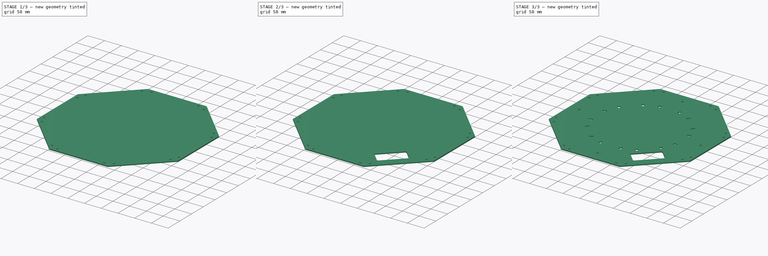
[diagram: build sequence overview — one tinted view per stage of 3, left to right]
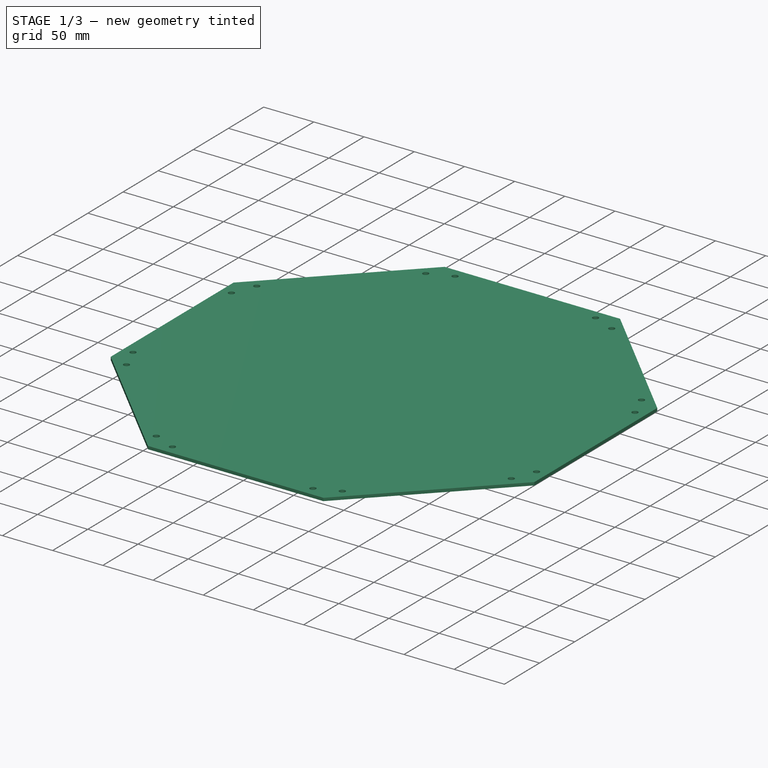
[diagram: stage 1 of 3 — iso view after this stage's code; geometry added in this stage tinted green]
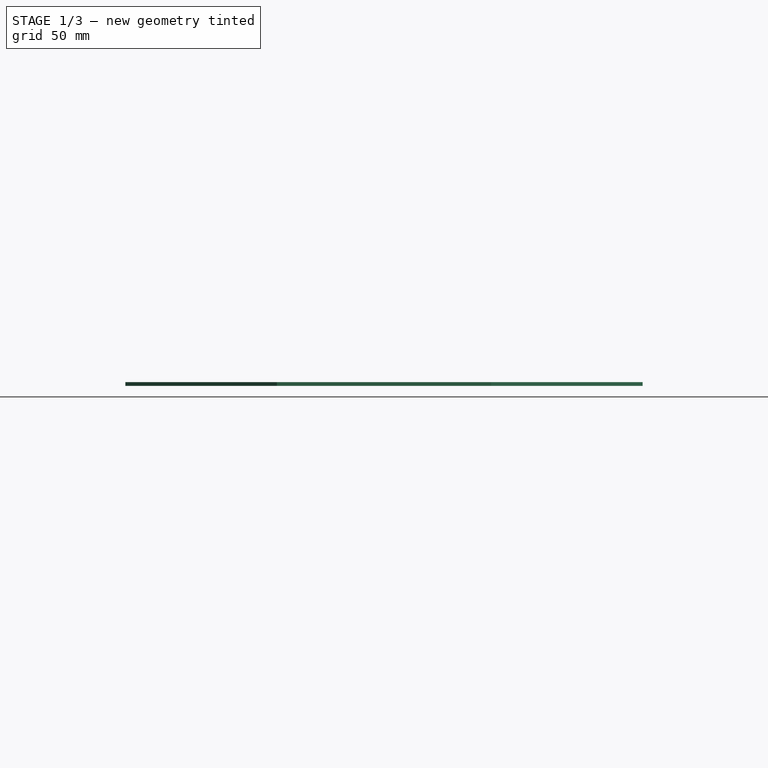
[diagram: stage 1 of 3 — front view after this stage's code; geometry added in this stage tinted green]
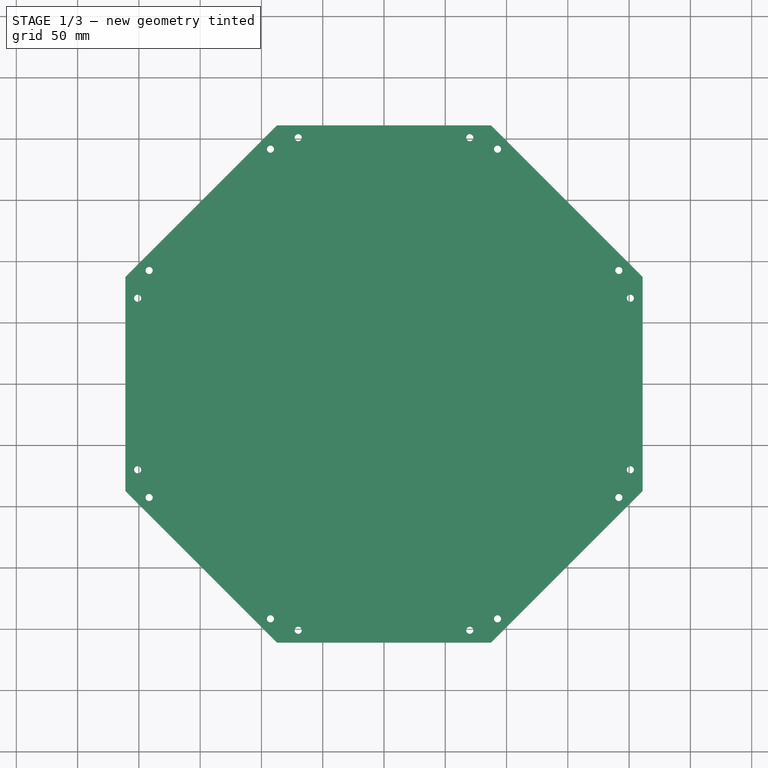
[diagram: stage 1 of 3 — top view after this stage's code; geometry added in this stage tinted green]
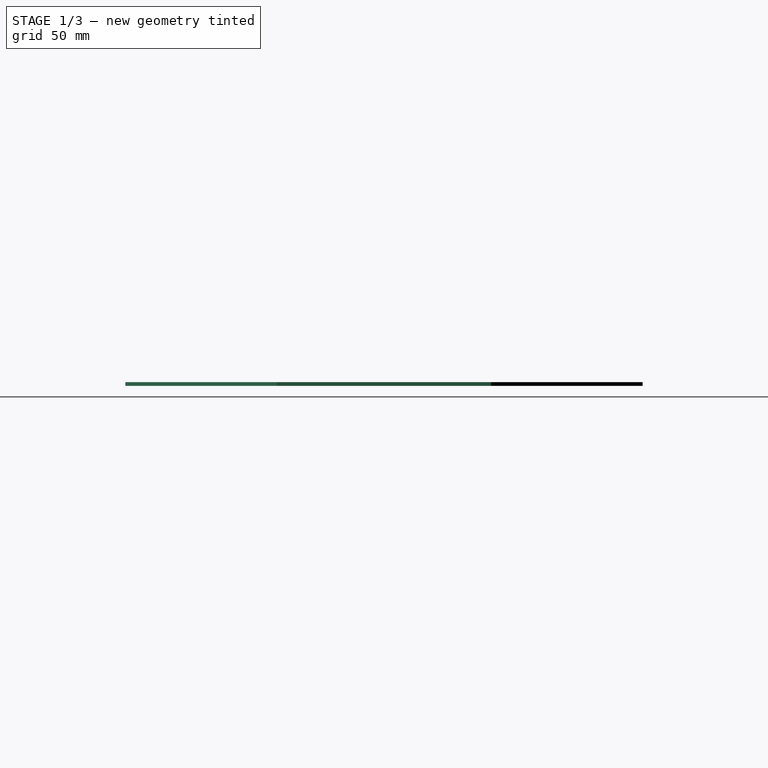
[diagram: stage 1 of 3 — right view after this stage's code; geometry added in this stage tinted green]
FCSTD DOCUMENT  (FreeCAD 1.0R39319 (Git))
Label: OCT-FRPLC-AA
License: All rights reserved
LicenseURL: https://en.wikipedia.org/wiki/All_rights_reserved
objects: Sketcher::SketchObject×5, PartDesign::Hole×2, PartDesign::PolarPattern×2, PartDesign::Pocket×2, App::Link×1, PartDesign::Pad×1, PartDesign::Fillet×1, PartDesign::Body×1
note: 33 computed .brp shape members not serialized (recipe doc carries the construction recipe); baked Part::Feature solids carry a one-line shape summary decoded from their .brp
EXTERNAL_REF file=../../master.FCStd obj=Spreadsheet

FEATURE [App::Link] Link  label="dims"
  LinkedObject = -> <external ../../master.FCStd>#Spreadsheet
FEATURE [Sketcher::SketchObject] Sketch
  ArcFitTolerance = 1e-06
  AttachmentSupport = -> [XY_Plane]
  FullyConstrained = true
  MakeInternals = false
  MapMode = 5
  expr: Constraints[25] = <<dims>>.iwFurnace
  sketch-geometry (9):
    g0: LineSegment StartX=87.3991 StartY=211 StartZ=0 EndX=-87.3991 EndY=211 EndZ=0
    g1: LineSegment StartX=-87.3991 StartY=211 StartZ=0 EndX=-211 EndY=87.3991 EndZ=0
    g2: LineSegment StartX=-211 StartY=87.3991 StartZ=0 EndX=-211 EndY=-87.3991 EndZ=0
    g3: LineSegment StartX=-211 StartY=-87.3991 StartZ=0 EndX=-87.3991 EndY=-211 EndZ=0
    g4: LineSegment StartX=-87.3991 StartY=-211 StartZ=0 EndX=87.3991 EndY=-211 EndZ=0
    g5: LineSegment StartX=87.3991 StartY=-211 StartZ=0 EndX=211 EndY=-87.3991 EndZ=0
    g6: LineSegment StartX=211 StartY=-87.3991 StartZ=0 EndX=211 EndY=87.3991 EndZ=0
    g7: LineSegment StartX=211 StartY=87.3991 StartZ=0 EndX=87.3991 EndY=211 EndZ=0
    g8: Circle [constr] CenterX=0 CenterY=0 CenterZ=0 NormalX=0 NormalY=0 NormalZ=1 AngleXU=0 Radius=228.385
  constraints (20):
    c: Coincident(g0,g1)
    c: Coincident(g1,g2)
    c: Coincident(g2,g3)
    c: Coincident(g3,g4)
    c: Coincident(g4,g5)
    c: Coincident(g5,g6)
    c: Coincident(g6,g7)
    c: Coincident(g7,g0)
    c: Equal(g0, g1-g7) x7
    c: PointOnObject(g0,g8)
    c: PointOnObject(g1,g8)
    c: PointOnObject(g2,g8)
    c: PointOnObject(g3,g8)
    c: PointOnObject(g4,g8)
    c: PointOnObject(g5,g8)
    c: PointOnObject(g6,g8)
    c: PointOnObject(g7,g8)
    c: Coincident(g8,g-1)
    c: Horizontal(g0)
    c: DistanceY(g3,g0) = 422
FEATURE [PartDesign::Pad] Pad
  Direction = (0,0,1)
  Length = 3
  Length2 = 10
  Profile = -> Sketch
  ReferenceAxis = -> Sketch [N_Axis]
  Refine = true
  Reversed = true
  Suppressed = false
  Type = 0
  expr: Length = <<dims>>.tBase
FEATURE [Sketcher::SketchObject] Sketch001
  ArcFitTolerance = 1e-06
  AttachmentSupport = -> [XY_Plane]
  FullyConstrained = true
  MakeInternals = false
  MapMode = 5
  expr: Constraints[3] = (<<dims>>.iwFurnace - <<dims>>.wExt) / 2
  sketch-geometry (3):
    g0: Circle CenterX=70 CenterY=-201 CenterZ=0 NormalX=0 NormalY=0 NormalZ=1 AngleXU=0 Radius=2.5
    g1: Circle CenterX=-70 CenterY=-201 CenterZ=0 NormalX=0 NormalY=0 NormalZ=1 AngleXU=0 Radius=2.5
    g2: LineSegment [constr] StartX=-70 StartY=-201 StartZ=0 EndX=70 EndY=-201 EndZ=0
  constraints (7):
    c: Coincident(g2,g1)
    c: Coincident(g2,g0)
    c: DistanceX(g2,g2) = 140
    c: DistanceY(g0,g-1) = 201
    c: Symmetric(g1,g0,g-2)
    c: Equal(g0,g1)
    c: Diameter(g0) = 5
FEATURE [PartDesign::Hole] Hole  label="frame mount holes"
  BaseFeature = -> Pad
  CustomThreadClearance = 0
  Depth = 1205.55
  DepthType = 1
  Diameter = 5.8
  DrillForDepth = false
  DrillPoint = 1
  DrillPointAngle = 118
  HoleCutCountersinkAngle = 90
  HoleCutCustomValues = false
  HoleCutDepth = 0
  HoleCutDiameter = 6.1
  HoleCutType = 0
  ModelThread = false
  Profile = -> Sketch001
  Refine = true
  Suppressed = false
  Tapered = false
  TaperedAngle = 90
  ThreadClass = 0
  ThreadDepth = 1205.55
  ThreadDepthType = 0
  ThreadDirection = 0
  ThreadFit = 2
  ThreadSize = 13
  ThreadType = 1
  Threaded = false
  UseCustomThreadClearance = false
FEATURE [PartDesign::PolarPattern] PolarPattern  label="ring hole pattern"
  Angle = 360
  Axis = -> Sketch001 [N_Axis]
  BaseFeature = -> Hole
  Mode = 0
  Occurrences = 8
  Offset = 120
  Originals = -> [Hole]
  Refine = true
  Suppressed = false
  TransformMode = 0
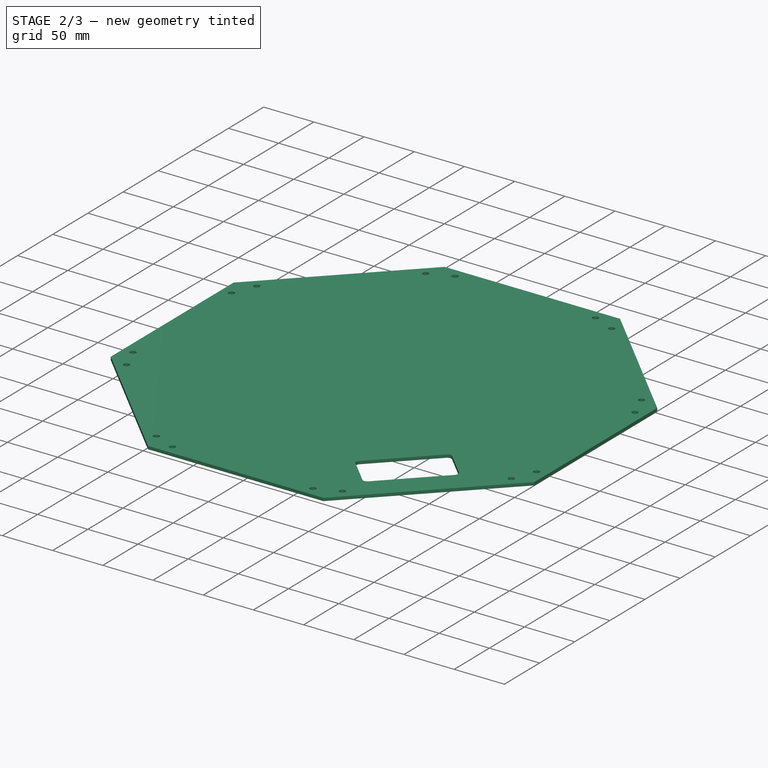
[diagram: stage 2 of 3 — iso view after this stage's code; geometry added in this stage tinted green]
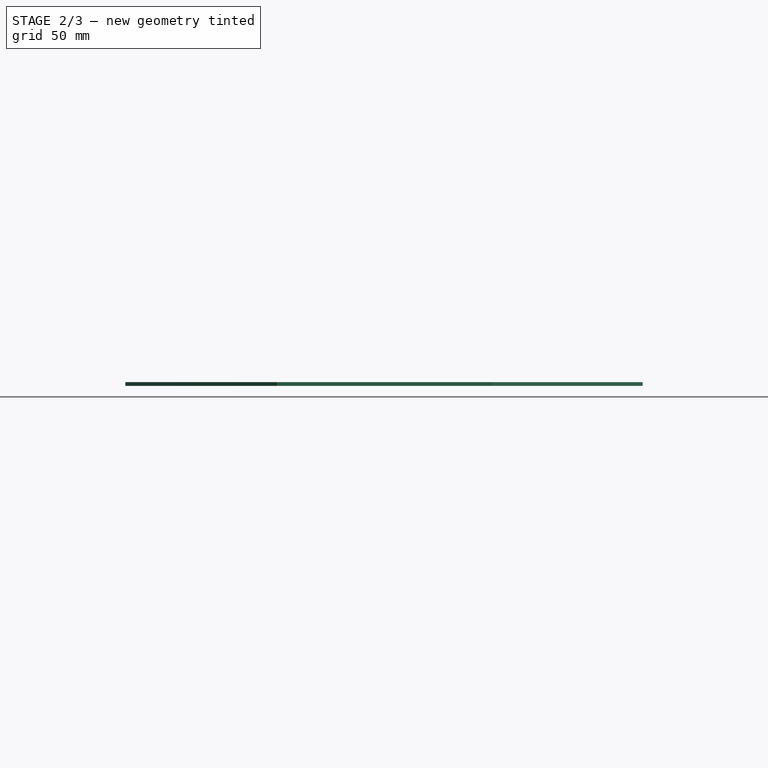
[diagram: stage 2 of 3 — front view after this stage's code; geometry added in this stage tinted green]
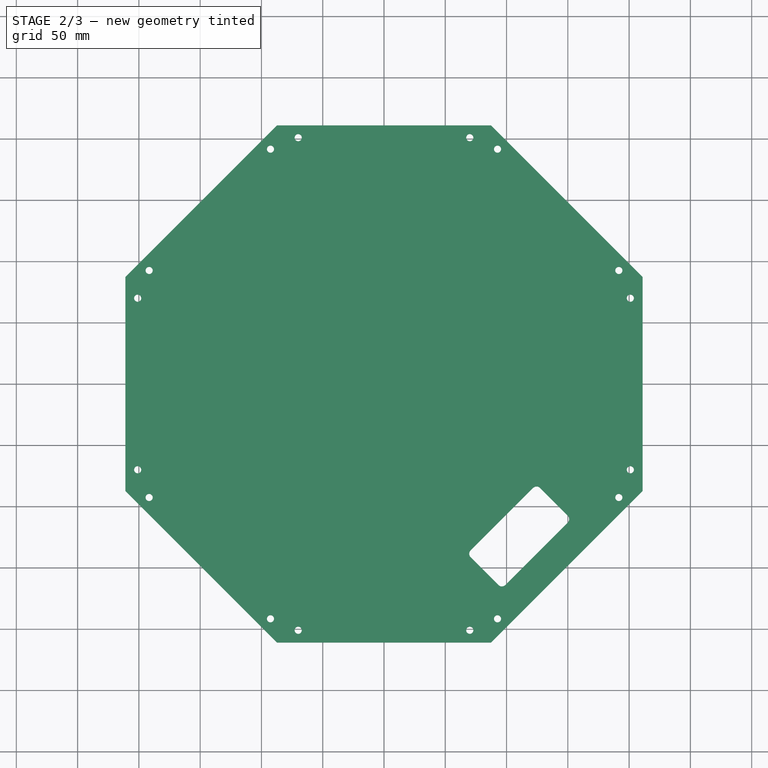
[diagram: stage 2 of 3 — top view after this stage's code; geometry added in this stage tinted green]
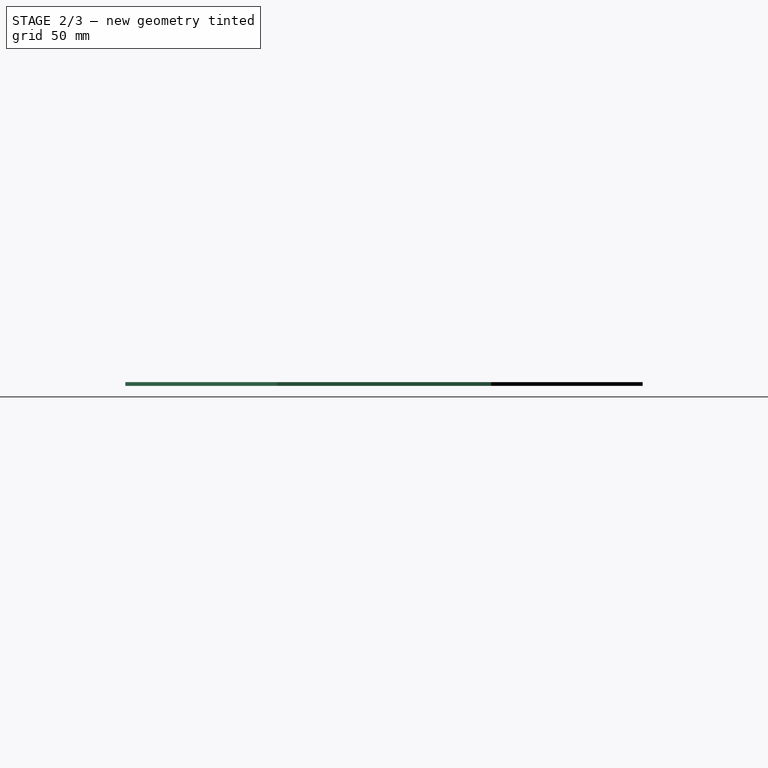
[diagram: stage 2 of 3 — right view after this stage's code; geometry added in this stage tinted green]
FEATURE [Sketcher::SketchObject] Sketch002
  ArcFitTolerance = 1e-06
  AttachmentSupport = -> [XY_Plane]
  FullyConstrained = false
  MakeInternals = false
  MapMode = 5
  expr: Constraints[18] = <<dims>>.iwFurnace / 2 - <<dims>>.wExt - 5
  sketch-geometry (8):
    g0: LineSegment StartX=96.1665 StartY=-166.877 StartZ=0 EndX=152.735 EndY=-110.309 EndZ=0
    g1: LineSegment StartX=152.735 StartY=-110.309 StartZ=0 EndX=124.451 EndY=-82.0244 EndZ=0
    g2: LineSegment StartX=124.451 StartY=-82.0244 StartZ=0 EndX=67.8823 EndY=-138.593 EndZ=0
    g3: LineSegment StartX=67.8823 StartY=-138.593 StartZ=0 EndX=96.1665 EndY=-166.877 EndZ=0
    g4: GeomPoint [constr] X=110.309 Y=-124.451 Z=0
    g5: LineSegment [constr] StartX=0 StartY=0 StartZ=0 EndX=203.219 EndY=-203.219 EndZ=0
    g6: LineSegment [constr] StartX=110.309 StartY=-124.451 StartZ=0 EndX=117.38 EndY=-117.38 EndZ=0
    g7: GeomPoint X=131.522 Y=-131.522 Z=0
  constraints (20):
    c: Coincident(g0,g1)
    c: Coincident(g1,g2)
    c: Coincident(g2,g3)
    c: Coincident(g3,g0)
    c: Symmetric(g2,g0,g4)
    c: Perpendicular(g2,g3)
    c: Perpendicular(g1,g0)
    c: Perpendicular(g3,g0)
    c: Coincident(g5,g-1)
    c: Angle(g-2,g5) = 0.785398
    c: Coincident(g6,g4)
    c: PointOnObject(g6,g5)
    c: Perpendicular(g6,g5)
    c: Distance(g1,g1) = 40
    c: Distance(g0,g0) = 80
    c: Parallel(g1,g5)
    c: PointOnObject(g7,g0)
    c: PointOnObject(g7,g5)
    c: Distance(g7,g5) = 186
    c: Distance(g6,g6) = 10
FEATURE [PartDesign::Pocket] Pocket  label="wire passthrough"
  BaseFeature = -> PolarPattern
  Direction = (0,0,-1)
  Length = 5
  Length2 = 5
  Profile = -> Sketch002
  ReferenceAxis = -> Sketch002 [N_Axis]
  Refine = true
  Suppressed = false
  Type = 1
FEATURE [PartDesign::Fillet] Fillet
  Base = -> Pocket [Edge73,Edge74,Edge72,Edge71]
  BaseFeature = -> Pocket
  Radius = 4
  Refine = true
  SupportTransform = false
  Suppressed = false
  UseAllEdges = false
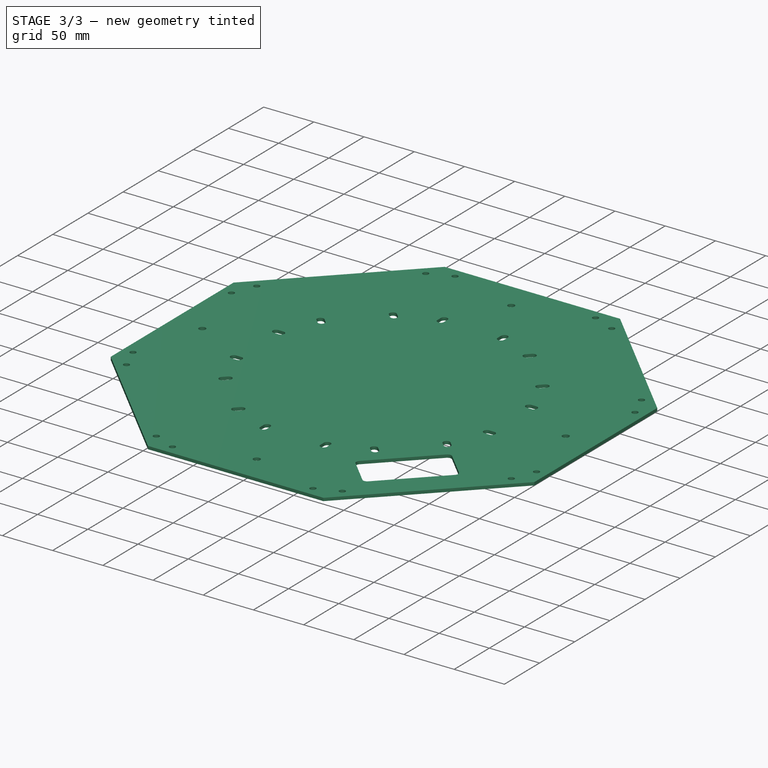
[diagram: stage 3 of 3 — iso view after this stage's code; geometry added in this stage tinted green]
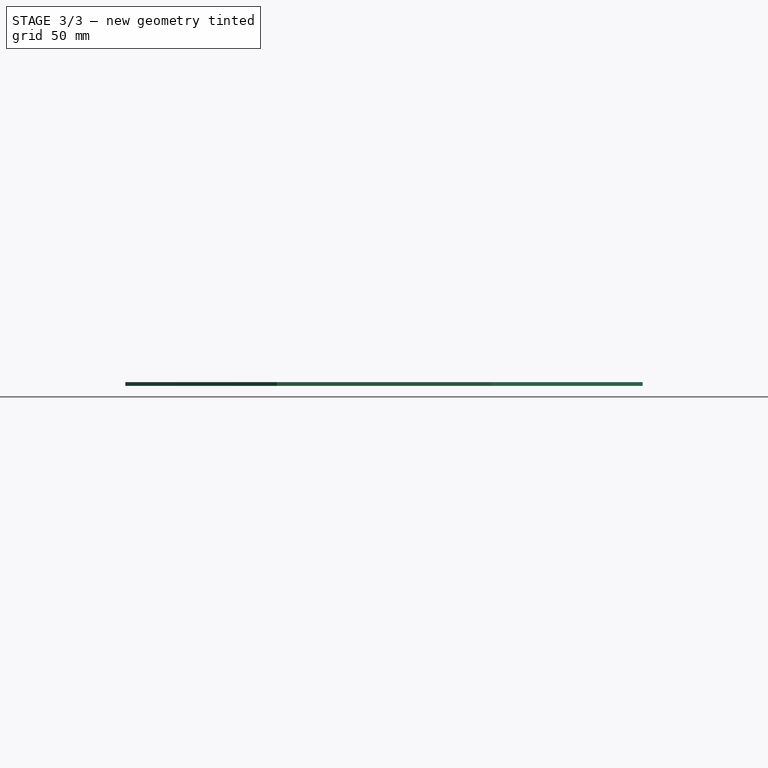
[diagram: stage 3 of 3 — front view after this stage's code; geometry added in this stage tinted green]
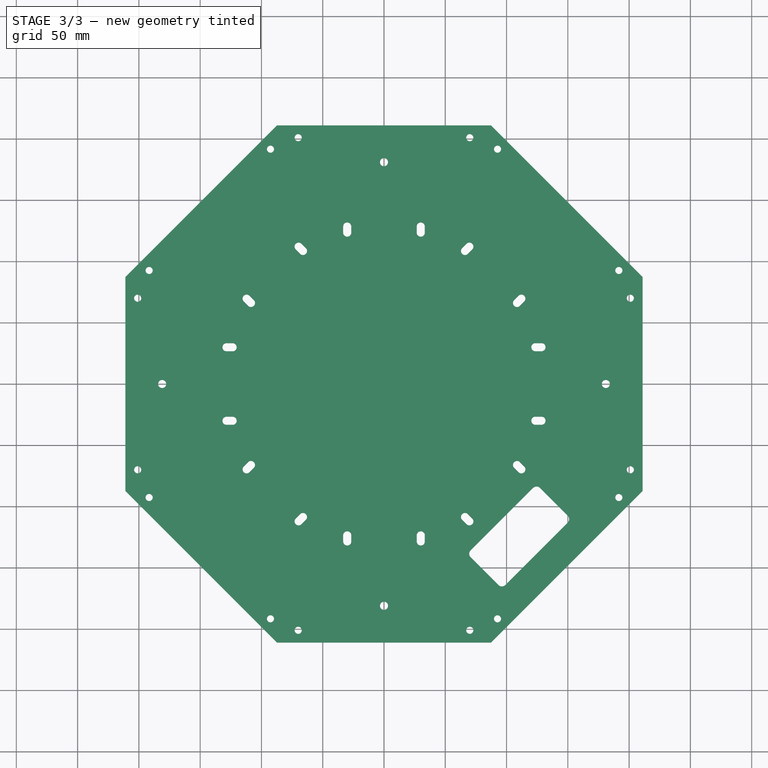
[diagram: stage 3 of 3 — top view after this stage's code; geometry added in this stage tinted green]
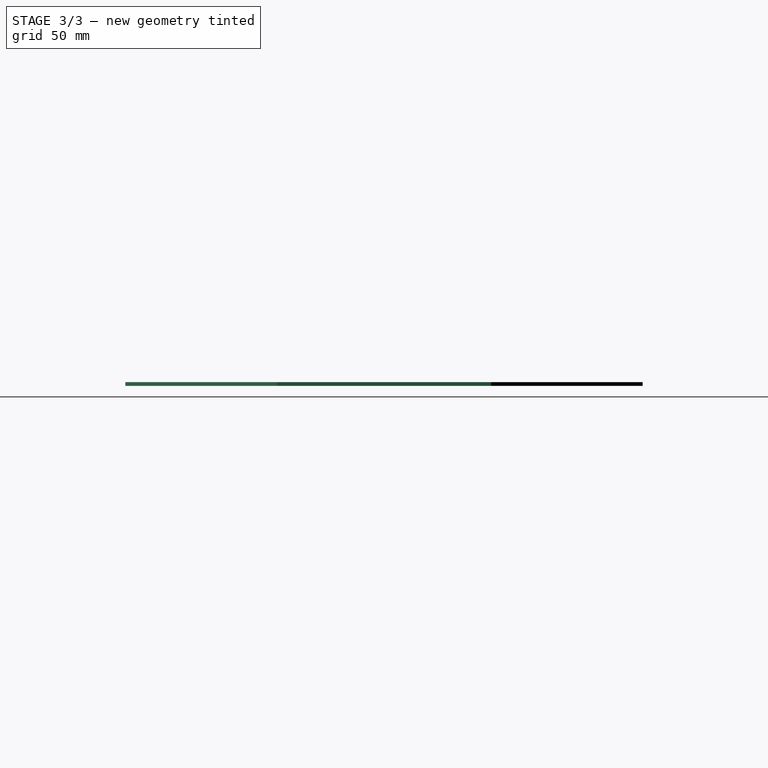
[diagram: stage 3 of 3 — right view after this stage's code; geometry added in this stage tinted green]
FEATURE [Sketcher::SketchObject] Sketch003
  ArcFitTolerance = 1e-06
  AttachmentSupport = -> [XY_Plane]
  FullyConstrained = true
  MakeInternals = false
  MapMode = 5
  expr: Constraints[24] = <<dims>>.owChamber
  sketch-geometry (22):
    g0: LineSegment [constr] StartX=45.9777 StartY=111 StartZ=0 EndX=-45.9777 EndY=111 EndZ=0
    g1: LineSegment [constr] StartX=-45.9777 StartY=111 StartZ=0 EndX=-111 EndY=45.9777 EndZ=0
    g2: LineSegment [constr] StartX=-111 StartY=45.9777 StartZ=0 EndX=-111 EndY=-45.9777 EndZ=0
    g3: LineSegment [constr] StartX=-111 StartY=-45.9777 StartZ=0 EndX=-45.9777 EndY=-111 EndZ=0
    g4: LineSegment [constr] StartX=-45.9777 StartY=-111 StartZ=0 EndX=45.9777 EndY=-111 EndZ=0
    g5: LineSegment [constr] StartX=45.9777 StartY=-111 StartZ=0 EndX=111 EndY=-45.9777 EndZ=0
    g6: LineSegment [constr] StartX=111 StartY=-45.9777 StartZ=0 EndX=111 EndY=45.9777 EndZ=0
    g7: LineSegment [constr] StartX=111 StartY=45.9777 StartZ=0 EndX=45.9777 EndY=111 EndZ=0
    g8: Circle [constr] CenterX=0 CenterY=0 CenterZ=0 NormalX=0 NormalY=0 NormalZ=1 AngleXU=0 Radius=120.146
    g9: Circle [constr] CenterX=-30 CenterY=126 CenterZ=0 NormalX=0 NormalY=0 NormalZ=1 AngleXU=0 Radius=3
    g10: Circle [constr] CenterX=30 CenterY=126 CenterZ=0 NormalX=0 NormalY=0 NormalZ=1 AngleXU=0 Radius=3
    g11: LineSegment [constr] StartX=-30 StartY=126 StartZ=0 EndX=30 EndY=126 EndZ=0
    g12: ArcOfCircle CenterX=-30 CenterY=128.5 CenterZ=0 NormalX=0 NormalY=0 NormalZ=1 AngleXU=0 Radius=3.3 StartAngle=2.7e-15 EndAngle=3.14159
    g13: ArcOfCircle CenterX=-30 CenterY=123.5 CenterZ=0 NormalX=0 NormalY=0 NormalZ=1 AngleXU=0 Radius=3.3 StartAngle=3.14159 EndAngle=6.28319
    g14: LineSegment StartX=-26.7 StartY=128.5 StartZ=0 EndX=-26.7 EndY=123.5 EndZ=0
    g15: LineSegment StartX=-33.3 StartY=128.5 StartZ=0 EndX=-33.3 EndY=123.5 EndZ=0
    g16: ArcOfCircle CenterX=30 CenterY=128.5 CenterZ=0 NormalX=0 NormalY=0 NormalZ=1 AngleXU=0 Radius=3.3 StartAngle=0 EndAngle=3.14159
    g17: ArcOfCircle CenterX=30 CenterY=123.5 CenterZ=0 NormalX=0 NormalY=0 NormalZ=1 AngleXU=0 Radius=3.3 StartAngle=3.14159 EndAngle=6.28319
    g18: LineSegment StartX=33.3 StartY=128.5 StartZ=0 EndX=33.3 EndY=123.5 EndZ=0
    g19: LineSegment StartX=26.7 StartY=128.5 StartZ=0 EndX=26.7 EndY=123.5 EndZ=0
    g20: LineSegment [constr] StartX=-30 StartY=128.5 StartZ=0 EndX=-30 EndY=126 EndZ=0
    g21: LineSegment [constr] StartX=30 StartY=128.5 StartZ=0 EndX=30 EndY=126 EndZ=0
  constraints (49):
    c: Coincident(g0,g1)
    c: Coincident(g1,g2)
    c: Coincident(g2,g3)
    c: Coincident(g3,g4)
    c: Coincident(g4,g5)
    c: Coincident(g5,g6)
    c: Coincident(g6,g7)
    c: Coincident(g7,g0)
    c: Equal(g0, g1-g7) x7
    c: PointOnObject(g0,g8)
    c: PointOnObject(g1,g8)
    c: PointOnObject(g2,g8)
    c: PointOnObject(g3,g8)
    c: PointOnObject(g4,g8)
    c: PointOnObject(g5,g8)
    c: PointOnObject(g6,g8)
    c: PointOnObject(g7,g8)
    c: Coincident(g8,g-1)
    c: DistanceY(g3,g0) = 222
    c: Coincident(g11,g9)
    c: Coincident(g11,g10)
    c: Symmetric(g9,g10,g-2)
    c: Equal(g9,g10)
    c: Diameter(g9) = 6
    c: DistanceX(g11,g11) = 60
    c: DistanceY(g0,g10) = 15
    c: Tangent(g12,g14) = 1.5708
    c: Tangent(g12,g15) = -1.5708
    c: Tangent(g13,g14) = 1.5708
    c: Tangent(g13,g15) = -1.5708
    c: Equal(g12,g13)
    c: Tangent(g16,g18) = 1.5708
    c: Tangent(g16,g19) = -1.5708
    c: Tangent(g17,g18) = 1.5708
    c: Tangent(g17,g19) = -1.5708
    c: Equal(g16,g17)
    c: Coincident(g20,g12)
    c: Coincident(g20,g9)
    c: Coincident(g21,g16)
    c: Coincident(g21,g10)
    c: Vertical(g21)
    c: Vertical(g20)
    c: Equal(g20,g21)
    c: Equal(g12,g16)
    c: Symmetric(g12,g13,g11)
    c: Symmetric(g16,g17,g11)
    c: Radius(g12) = 3.3
    c: DistanceY(g15,g15) = 5
    c: Horizontal(g0)
FEATURE [PartDesign::Pocket] Pocket001  label="brace holes"
  BaseFeature = -> Fillet
  Direction = (0,0,-1)
  Length = 5
  Length2 = 5
  Profile = -> Sketch003
  ReferenceAxis = -> Sketch003 [N_Axis]
  Refine = true
  Suppressed = false
  Type = 1
FEATURE [PartDesign::PolarPattern] PolarPattern001  label="brace hole pattern"
  Angle = 360
  Axis = -> Sketch003 [N_Axis]
  BaseFeature = -> Pocket001
  Mode = 0
  Occurrences = 8
  Offset = 120
  Originals = -> [Pocket001]
  Refine = true
  Suppressed = false
  TransformMode = 0
FEATURE [Sketcher::SketchObject] Sketch004
  ArcFitTolerance = 1e-06
  AttachmentSupport = -> [XY_Plane]
  FullyConstrained = true
  MakeInternals = false
  MapMode = 5
  expr: Constraints[10] = <<dims>>.iwFurnace / 2 - <<dims>>.wExt - 10
  sketch-geometry (5):
    g0: Circle CenterX=0 CenterY=181 CenterZ=0 NormalX=0 NormalY=0 NormalZ=1 AngleXU=0 Radius=3
    g1: Circle CenterX=181 CenterY=0 CenterZ=0 NormalX=0 NormalY=0 NormalZ=1 AngleXU=0 Radius=3
    g2: Circle CenterX=0 CenterY=-181 CenterZ=0 NormalX=0 NormalY=0 NormalZ=1 AngleXU=0 Radius=3
    g3: Circle CenterX=-181 CenterY=0 CenterZ=0 NormalX=0 NormalY=0 NormalZ=1 AngleXU=0 Radius=3
    g4: LineSegment [constr] StartX=0 StartY=181 StartZ=0 EndX=181 EndY=0 EndZ=0
  constraints (12):
    c: PointOnObject(g1,g-1)
    c: PointOnObject(g2,g-2)
    c: Equal(g0,g1)
    c: Equal(g1,g2)
    c: Equal(g2,g3)
    c: Symmetric(g2,g0,g-1)
    c: Symmetric(g3,g1,g-2)
    c: Coincident(g4,g0)
    c: Coincident(g4,g1)
    c: Angle(g-2,g4) = 0.785398
    c: DistanceX(g-1,g1) = 181
    c: Diameter(g0) = 6
FEATURE [PartDesign::Hole] Hole001  label="insulation mount holes"
  BaseFeature = -> PolarPattern001
  CustomThreadClearance = 0
  Depth = 25
  DepthType = 0
  Diameter = 6.6
  DrillForDepth = false
  DrillPoint = 1
  DrillPointAngle = 118
  HoleCutCountersinkAngle = 90
  HoleCutCustomValues = false
  HoleCutDepth = 0
  HoleCutDiameter = 0
  HoleCutType = 0
  ModelThread = false
  Profile = -> Sketch004
  Refine = true
  Suppressed = false
  Tapered = false
  TaperedAngle = 90
  ThreadClass = 0
  ThreadDepth = 25
  ThreadDepthType = 0
  ThreadDirection = 0
  ThreadFit = 0
  ThreadSize = 14
  ThreadType = 1
  Threaded = false
  UseCustomThreadClearance = false
FEATURE [PartDesign::Body] Body  label="OCT-FRPLC-AA"
  AllowCompound = false
  Group = -> [Sketch,Pad,Sketch001,Hole,PolarPattern,Sketch002,Pocket,Fillet,Sketch003,Pocket001,PolarPattern001,Sketch004,Hole001]
  Origin = -> Origin
  Tip = -> Hole001
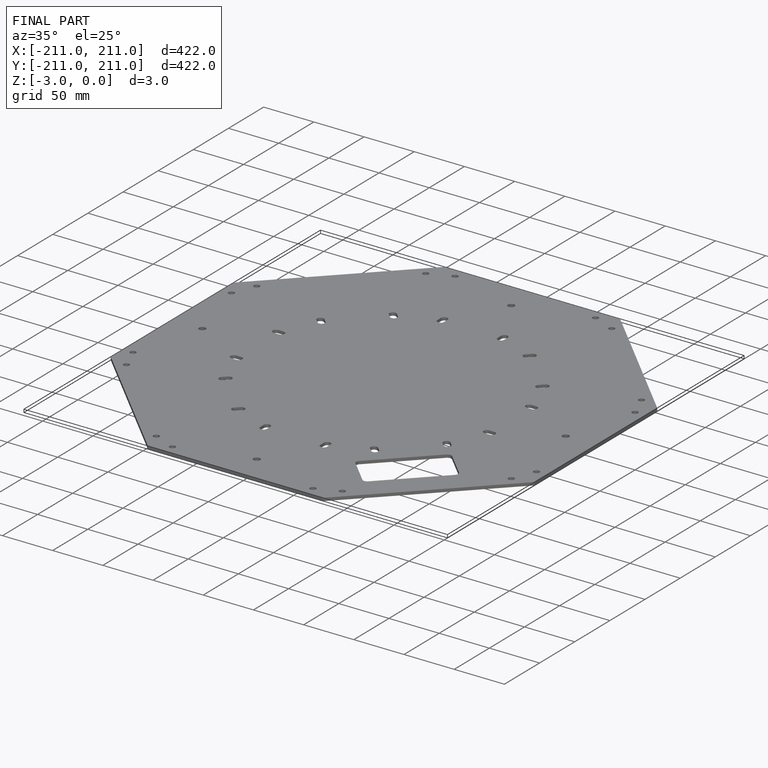
[diagram: finished part — iso view with bounding-box wireframe]
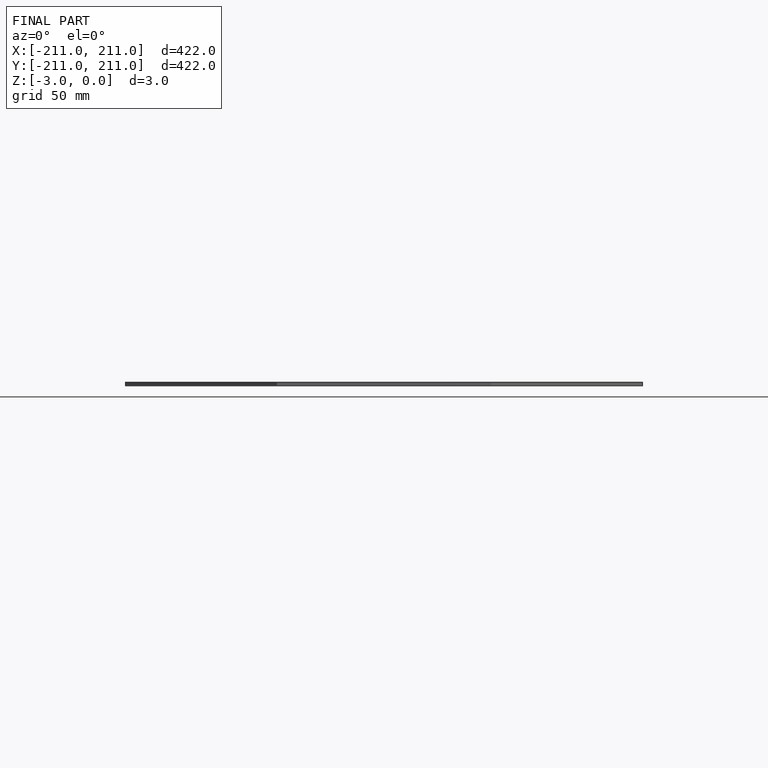
[diagram: finished part — front view with bounding-box wireframe]
